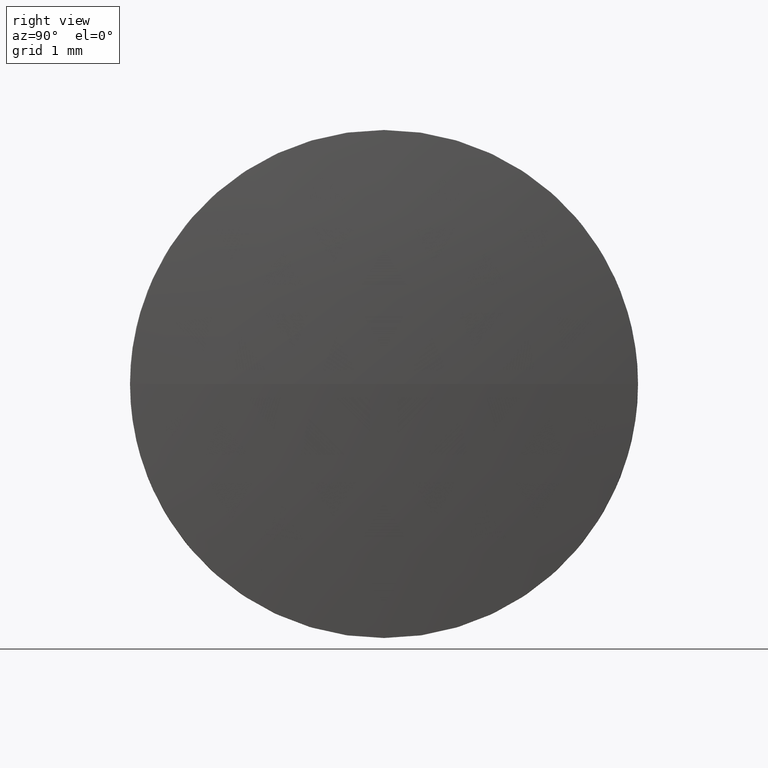
[diagram: clean part render]
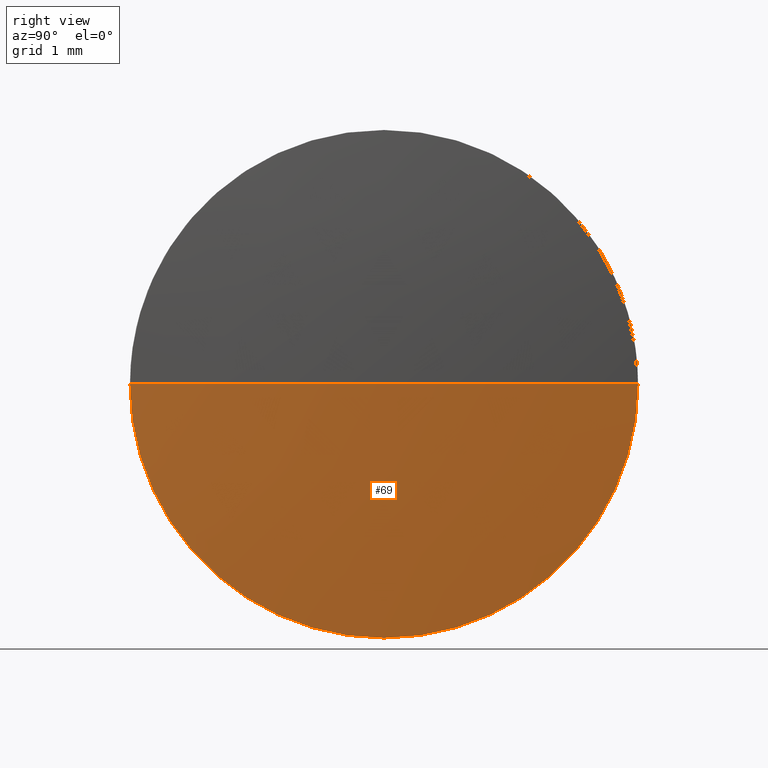
[diagram: same view with one face highlighted and labeled with its STEP entity id]
A machine part, right view. The second image highlights one B-rep face of the part: STEP entity #69.
In plain terms, the highlighted spherical surface has radius 33.15 mm.
Its self-contained STEP definition (entity closure, byte-faithful):
#1 = AXIS2_PLACEMENT_3D ( 'NONE', #105, #165, #7 ) ;
#2 = DIRECTION ( 'NONE',  ( -0.0000000000000000000, 0.0000000000000000000, -1.000000000000000000 ) ) ;
#7 = DIRECTION ( 'NONE',  ( 0.0000000000000000000, 1.000000000000000000, 1.224646799147353200E-016 ) ) ;
#8 = VERTEX_POINT ( 'NONE', #11 ) ;
#11 = CARTESIAN_POINT ( 'NONE',  ( 422.7535266146244900, 41.45173696061073100, -3.857637417314108000E-016 ) ) ;
#12 = DIRECTION ( 'NONE',  ( 0.0000000000000000000, 1.000000000000000000, 0.0000000000000000000 ) ) ;
#18 = DIRECTION ( 'NONE',  ( -1.000000000000000000, -0.0000000000000000000, -0.0000000000000000000 ) ) ;
#19 = FACE_OUTER_BOUND ( 'NONE', #52, .T. ) ;
#21 = CARTESIAN_POINT ( 'NONE',  ( 422.7535266146244900, 44.60173696061082200, 0.0000000000000000000 ) ) ;
#28 = CARTESIAN_POINT ( 'NONE',  ( 422.7535266146244900, 44.60173696061082200, -3.149999999999999900 ) ) ;
#29 = CIRCLE ( 'NONE', #127, 3.149999999999999900 ) ;
#33 = VERTEX_POINT ( 'NONE', #28 ) ;
#37 = DIRECTION ( 'NONE',  ( 1.000000000000000000, 0.0000000000000000000, 0.0000000000000000000 ) ) ;
#38 = ORIENTED_EDGE ( 'NONE', *, *, #103, .F. ) ;
#49 = VERTEX_POINT ( 'NONE', #129 ) ;
#52 = EDGE_LOOP ( 'NONE', ( #38, #76, #70, #83 ) ) ;
#55 = DIRECTION ( 'NONE',  ( 0.0000000000000000000, 0.0000000000000000000, 1.000000000000000000 ) ) ;
#62 = CARTESIAN_POINT ( 'NONE',  ( 389.7535266146232400, 44.60173696061069400, 0.0000000000000000000 ) ) ;
#69 = ADVANCED_FACE ( 'NONE', ( #19 ), #148, .T. ) ;
#70 = ORIENTED_EDGE ( 'NONE', *, *, #123, .F. ) ;
#76 = ORIENTED_EDGE ( 'NONE', *, *, #140, .T. ) ;
#83 = ORIENTED_EDGE ( 'NONE', *, *, #143, .F. ) ;
#88 = CARTESIAN_POINT ( 'NONE',  ( 422.7535266146244900, 44.60173696061082200, 0.0000000000000000000 ) ) ;
#93 = CIRCLE ( 'NONE', #1, 33.15000000000124900 ) ;
#97 = AXIS2_PLACEMENT_3D ( 'NONE', #116, #130, #37 ) ;
#103 = EDGE_CURVE ( 'NONE', #161, #49, #154, .T. ) ;
#105 = CARTESIAN_POINT ( 'NONE',  ( 389.7535266146232400, 44.60173696061069400, 0.0000000000000000000 ) ) ;
#111 = CIRCLE ( 'NONE', #138, 3.149999999999999900 ) ;
#116 = CARTESIAN_POINT ( 'NONE',  ( 389.7535266146232400, 44.60173696061069400, 0.0000000000000000000 ) ) ;
#121 = DIRECTION ( 'NONE',  ( -1.000000000000000000, -0.0000000000000000000, -0.0000000000000000000 ) ) ;
#123 = EDGE_CURVE ( 'NONE', #33, #8, #29, .T. ) ;
#127 = AXIS2_PLACEMENT_3D ( 'NONE', #88, #18, #163 ) ;
#129 = CARTESIAN_POINT ( 'NONE',  ( 422.7535266146244900, 47.75173696061077800, 0.0000000000000000000 ) ) ;
#130 = DIRECTION ( 'NONE',  ( -0.0000000000000000000, 0.0000000000000000000, 1.000000000000000000 ) ) ;
#138 = AXIS2_PLACEMENT_3D ( 'NONE', #21, #121, #55 ) ;
#140 = EDGE_CURVE ( 'NONE', #161, #8, #93, .T. ) ;
#143 = EDGE_CURVE ( 'NONE', #49, #33, #111, .T. ) ;
#148 = SPHERICAL_SURFACE ( 'NONE', #155, 33.15000000000124900 ) ;
#154 = CIRCLE ( 'NONE', #97, 33.15000000000123500 ) ;
#155 = AXIS2_PLACEMENT_3D ( 'NONE', #62, #2, #12 ) ;
#161 = VERTEX_POINT ( 'NONE', #167 ) ;
#163 = DIRECTION ( 'NONE',  ( 0.0000000000000000000, 0.0000000000000000000, 1.000000000000000000 ) ) ;
#165 = DIRECTION ( 'NONE',  ( 0.0000000000000000000, 1.224646799147353200E-016, -1.000000000000000000 ) ) ;
#167 = CARTESIAN_POINT ( 'NONE',  ( 422.9035266146244700, 44.60173696061069400, 0.0000000000000000000 ) ) ;